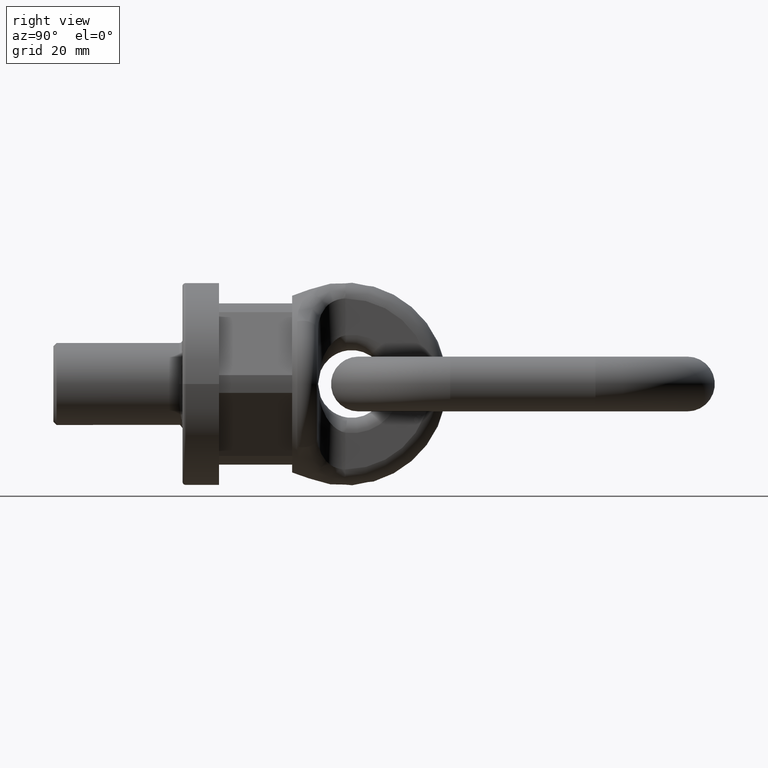
[diagram: clean part render]
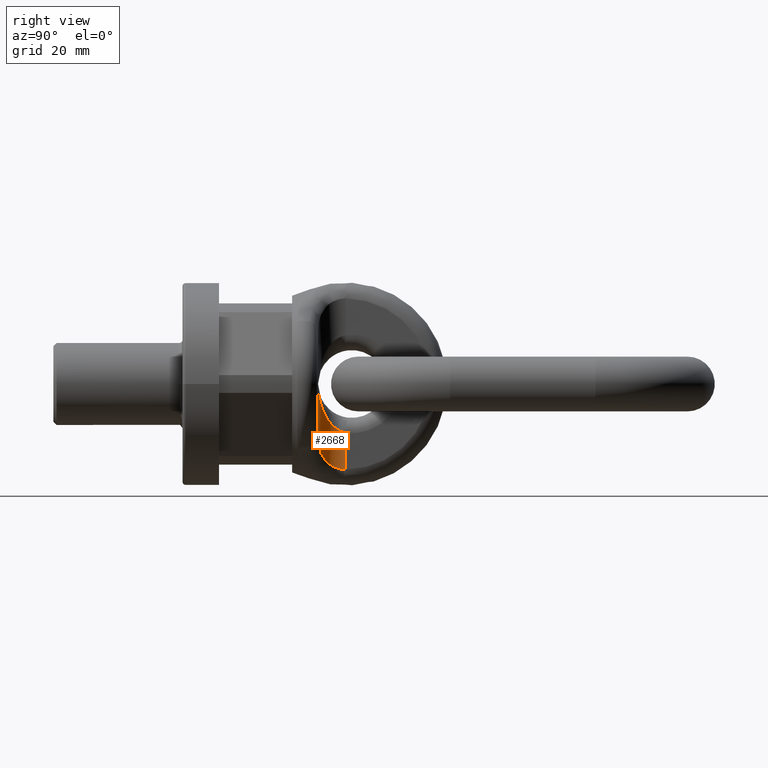
[diagram: same view with one face highlighted and labeled with its STEP entity id]
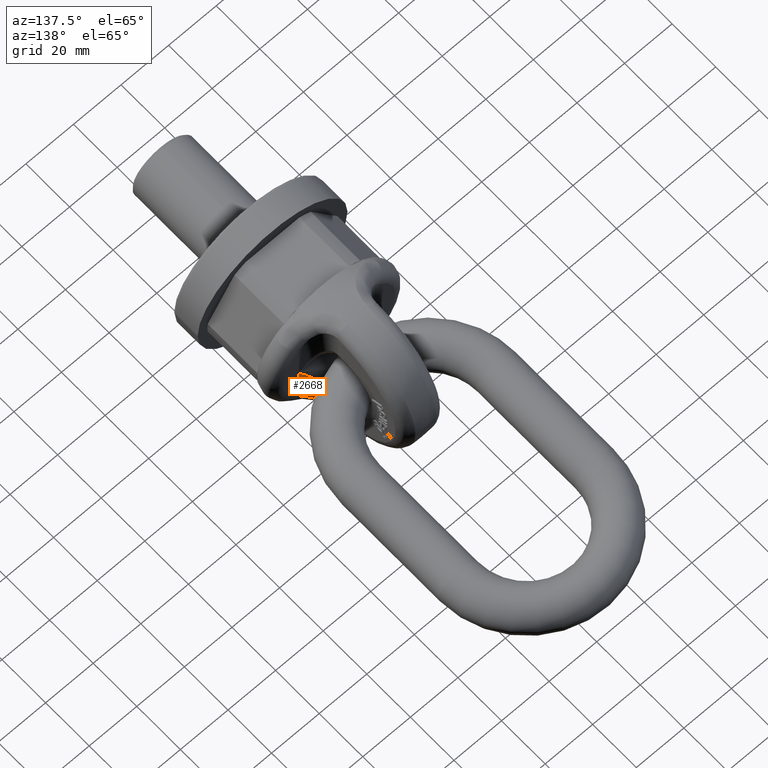
[diagram: same view with one face highlighted and labeled with its STEP entity id]
A machine part, right view. The second image highlights one B-rep face of the part: STEP entity #2668.
A second angle (auxiliary view) of the same face is appended — the face is thin or edge-on in the first view.
In plain terms, the highlighted cylindrical surface (edge-blend (fillet) strip) has radius 8.5 mm, axis along (0, 0, -1).
Its self-contained STEP definition (entity closure, byte-faithful):
#354=B_SPLINE_CURVE_WITH_KNOTS('',3,(#6994,#6995,#6996,#6997,#6998,#6999,
#7000,#7001),.UNSPECIFIED.,.F.,.F.,(4,2,2,4),(0.,0.25,0.5,1.),
 .UNSPECIFIED.);
#355=B_SPLINE_CURVE_WITH_KNOTS('',3,(#7004,#7005,#7006,#7007,#7008,#7009),
 .UNSPECIFIED.,.F.,.F.,(4,2,4),(0.,0.5,1.),.UNSPECIFIED.);
#356=B_SPLINE_CURVE_WITH_KNOTS('',3,(#7011,#7012,#7013,#7014,#7015,#7016),
 .UNSPECIFIED.,.F.,.F.,(4,2,4),(0.,0.5,1.),.UNSPECIFIED.);
#1821=FACE_OUTER_BOUND('',#3103,.T.);
#2029=CYLINDRICAL_SURFACE('',#5651,8.5);
#2072=LINE('',#6793,#2328);
#2100=LINE('',#7002,#2356);
#2328=VECTOR('',#5930,1.);
#2356=VECTOR('',#5964,1.);
#2668=ADVANCED_FACE('',(#1821),#2029,.F.);
#3103=EDGE_LOOP('',(#3516,#3517,#3518,#3519,#3520));
#3516=ORIENTED_EDGE('',*,*,#5010,.F.);
#3517=ORIENTED_EDGE('',*,*,#5062,.T.);
#3518=ORIENTED_EDGE('',*,*,#5063,.F.);
#3519=ORIENTED_EDGE('',*,*,#5064,.T.);
#3520=ORIENTED_EDGE('',*,*,#5065,.T.);
#4600=VERTEX_POINT('',#6792);
#4601=VERTEX_POINT('',#6794);
#4648=VERTEX_POINT('',#6970);
#4651=VERTEX_POINT('',#7003);
#4652=VERTEX_POINT('',#7010);
#5010=EDGE_CURVE('',#4600,#4601,#2072,.T.);
#5062=EDGE_CURVE('',#4600,#4648,#354,.T.);
#5063=EDGE_CURVE('',#4651,#4648,#2100,.T.);
#5064=EDGE_CURVE('',#4651,#4652,#355,.T.);
#5065=EDGE_CURVE('',#4652,#4601,#356,.T.);
#5651=AXIS2_PLACEMENT_3D('',#7017,#5965,#5966);
#5930=DIRECTION('',(0.,0.,-1.));
#5964=DIRECTION('',(0.,0.,1.));
#5965=DIRECTION('',(0.,0.,-1.));
#5966=DIRECTION('',(-1.,0.,0.));
#6792=CARTESIAN_POINT('',(8.49999999999999,50.5,-15.1182836327409));
#6793=CARTESIAN_POINT('',(8.49999999999999,50.5,-29.1161467230813));
#6794=CARTESIAN_POINT('',(8.49999999999999,50.5,-26.4858452762981));
#6970=CARTESIAN_POINT('',(17.,42.,0.));
#6994=CARTESIAN_POINT('',(8.5,50.5,-15.1182836327409));
#6995=CARTESIAN_POINT('',(8.5,48.7897794494069,-14.7656070856526));
#6996=CARTESIAN_POINT('',(9.0000321072577,47.3594461460169,-13.7598728952553));
#6997=CARTESIAN_POINT('',(10.267229434254,45.1584304456742,-11.4124952103953));
#6998=CARTESIAN_POINT('',(11.0326858287122,44.3615572800621,-10.079201956491));
#6999=CARTESIAN_POINT('',(13.4639215920095,42.5060385745375,-5.90694251707449));
#7000=CARTESIAN_POINT('',(15.2407154172068,42.,-2.94211773658092));
#7001=CARTESIAN_POINT('',(17.,42.,0.));
#7002=CARTESIAN_POINT('',(17.,42.,29.1161467230813));
#7003=CARTESIAN_POINT('',(17.,42.,-16.3388743454367));
#7004=CARTESIAN_POINT('',(17.,42.,-16.3388743454367));
#7005=CARTESIAN_POINT('',(16.1255177037299,42.,-17.757196095223));
#7006=CARTESIAN_POINT('',(15.1540942884114,42.1305705269775,-19.0860203037769));
#7007=CARTESIAN_POINT('',(13.088621241953,42.8740027661249,-21.5851038941339));
#7008=CARTESIAN_POINT('',(12.0236789865708,43.4862943767509,-22.7121062377088));
#7009=CARTESIAN_POINT('',(11.0856198600875,44.3950751388236,-23.7584121400265));
#7010=CARTESIAN_POINT('',(11.0856198600875,44.3950751388237,-23.7584121400266));
#7011=CARTESIAN_POINT('',(11.0856198600875,44.3950751388237,-23.7584121400266));
#7012=CARTESIAN_POINT('',(10.3885962194839,45.0703435279978,-24.5358684097104));
#7013=CARTESIAN_POINT('',(9.74345099294727,45.9286991684192,-25.2157990186671));
#7014=CARTESIAN_POINT('',(8.79418859735189,48.0062169282916,-26.194415952954));
#7015=CARTESIAN_POINT('',(8.5,49.2410761045742,-26.4858452762981));
#7016=CARTESIAN_POINT('',(8.5,50.5,-26.4858452762981));
#7017=CARTESIAN_POINT('',(17.,50.5,34.65));